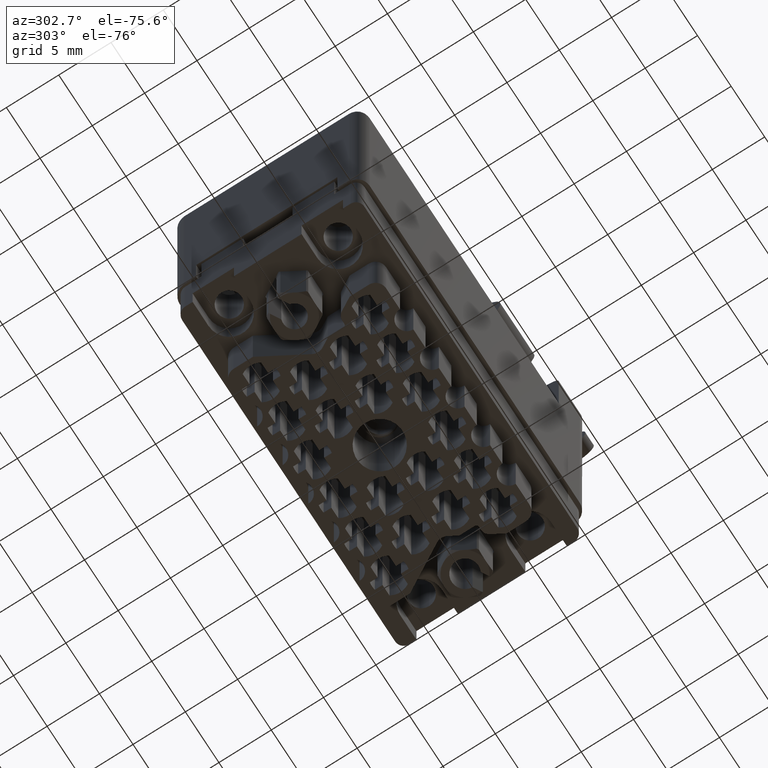
[diagram: clean part render]
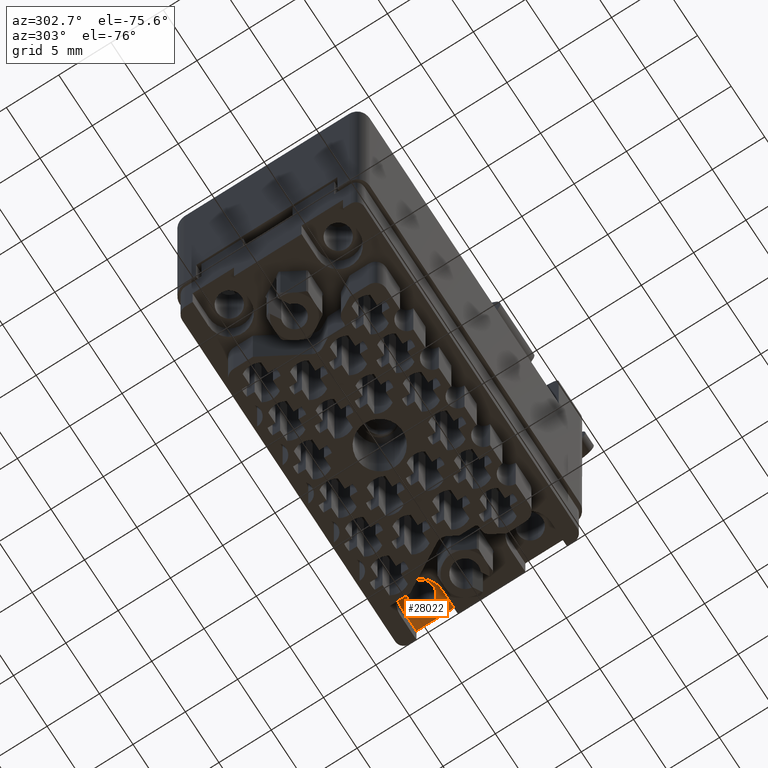
[diagram: same view with one face highlighted and labeled with its STEP entity id]
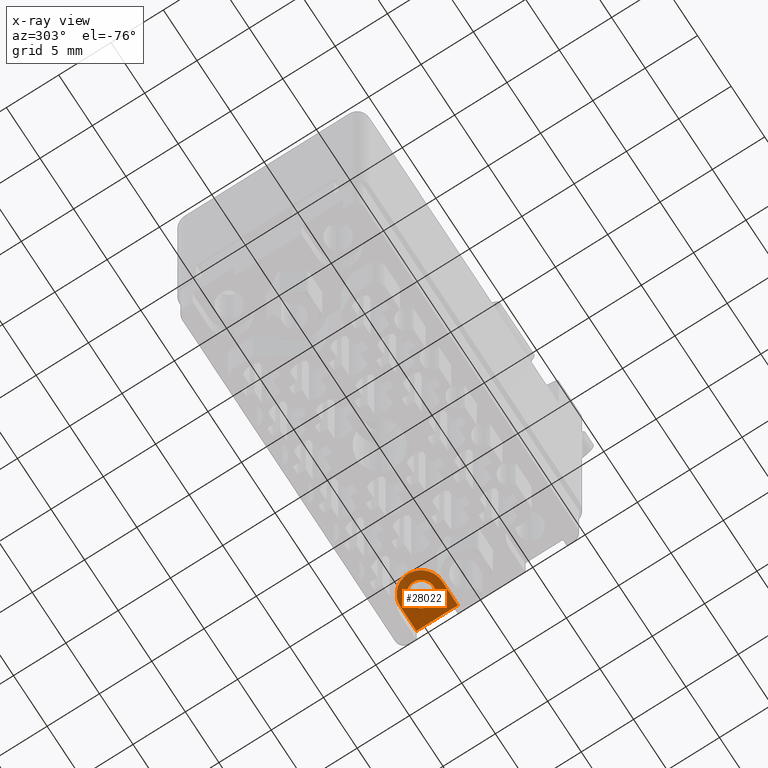
[diagram: x-ray of the same camera — body ghosted, the highlighted face saturated]
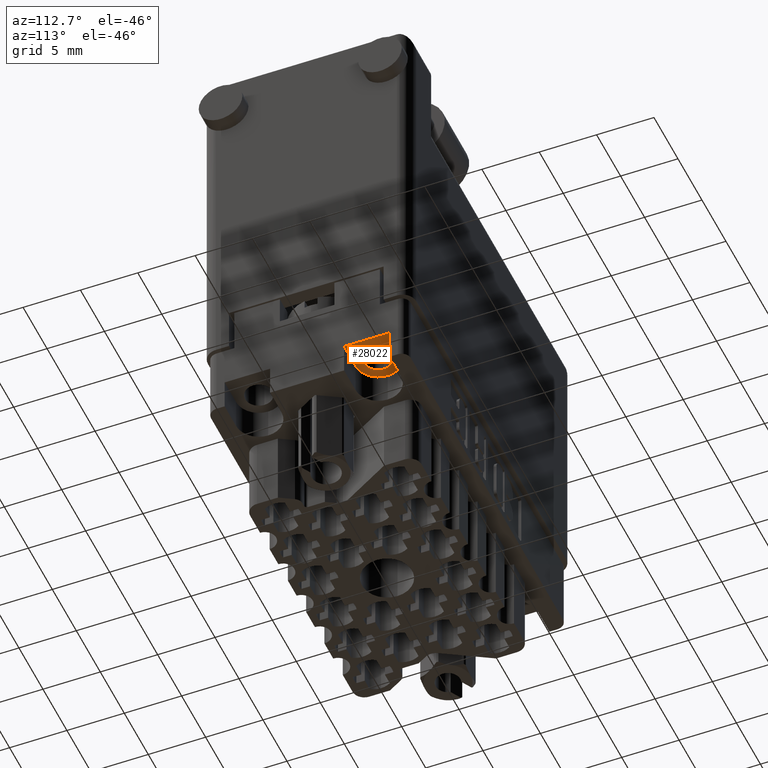
[diagram: same view with one face highlighted and labeled with its STEP entity id]
A machine part, auxiliary view. The second image highlights one B-rep face of the part: STEP entity #28022.
The next image is the same camera in x-ray: the body ghosted, the highlighted face saturated — about 20% of this face is hidden behind the body in this view.
A second angle (auxiliary view) of the same face is appended — the face is thin or edge-on in the first view.
In plain terms, the highlighted planar face has unit normal (0, 0, -1).
Its self-contained STEP definition (entity closure, byte-faithful):
#549 = ORIENTED_EDGE ( 'NONE', *, *, #32749, .F. ) ;
#1558 = CARTESIAN_POINT ( 'NONE',  ( 0.6090000000000001000, 0.2049999999999999900, -0.4200000000000001000 ) ) ;
#1779 = VERTEX_POINT ( 'NONE', #23985 ) ;
#2939 = VECTOR ( 'NONE', #35113, 39.37007874015748100 ) ;
#4803 = CARTESIAN_POINT ( 'NONE',  ( 0.6559999999999999200, 0.2829999999999999700, -0.4200000000000001000 ) ) ;
#5494 = AXIS2_PLACEMENT_3D ( 'NONE', #8997, #14672, #14197 ) ;
#6001 = DIRECTION ( 'NONE',  ( 0.0000000000000000000, 0.0000000000000000000, -1.000000000000000000 ) ) ;
#6036 = EDGE_CURVE ( 'NONE', #27730, #6904, #31824, .T. ) ;
#6171 = CARTESIAN_POINT ( 'NONE',  ( 0.4845000000000001000, 0.2049999999999999900, -0.4200000000000001000 ) ) ;
#6904 = VERTEX_POINT ( 'NONE', #4803 ) ;
#7164 = CARTESIAN_POINT ( 'NONE',  ( 0.5625000000000001100, 0.2830000000000000300, -0.4200000000000001000 ) ) ;
#7773 = AXIS2_PLACEMENT_3D ( 'NONE', #26409, #26524, #12929 ) ;
#8169 = EDGE_CURVE ( 'NONE', #14401, #33417, #23691, .T. ) ;
#8274 = CARTESIAN_POINT ( 'NONE',  ( 0.5625000000000001100, 0.2049999999999999900, -0.4200000000000001000 ) ) ;
#8518 = DIRECTION ( 'NONE',  ( 0.0000000000000000000, 0.0000000000000000000, -1.000000000000000000 ) ) ;
#8749 = ORIENTED_EDGE ( 'NONE', *, *, #6036, .F. ) ;
#8997 = CARTESIAN_POINT ( 'NONE',  ( 0.5625000000000001100, 0.2049999999999999900, -0.4200000000000001000 ) ) ;
#9261 = ORIENTED_EDGE ( 'NONE', *, *, #29272, .T. ) ;
#10663 = DIRECTION ( 'NONE',  ( -1.000000000000000000, 0.0000000000000000000, 0.0000000000000000000 ) ) ;
#10689 = LINE ( 'NONE', #28112, #17173 ) ;
#12866 = ORIENTED_EDGE ( 'NONE', *, *, #8169, .F. ) ;
#12929 = DIRECTION ( 'NONE',  ( -1.000000000000000000, 0.0000000000000000000, -0.0000000000000000000 ) ) ;
#13098 = CIRCLE ( 'NONE', #5494, 0.07799999999999995800 ) ;
#13242 = VERTEX_POINT ( 'NONE', #6171 ) ;
#13614 = ORIENTED_EDGE ( 'NONE', *, *, #34029, .T. ) ;
#14032 = FACE_BOUND ( 'NONE', #15351, .T. ) ;
#14197 = DIRECTION ( 'NONE',  ( -1.000000000000000000, 0.0000000000000000000, 0.0000000000000000000 ) ) ;
#14401 = VERTEX_POINT ( 'NONE', #25026 ) ;
#14672 = DIRECTION ( 'NONE',  ( 0.0000000000000000000, 0.0000000000000000000, -1.000000000000000000 ) ) ;
#15351 = EDGE_LOOP ( 'NONE', ( #12866, #549 ) ) ;
#15520 = ORIENTED_EDGE ( 'NONE', *, *, #23902, .F. ) ;
#15547 = CARTESIAN_POINT ( 'NONE',  ( 0.0000000000000000000, 0.1269999999999999700, -0.4200000000000001000 ) ) ;
#16706 = CARTESIAN_POINT ( 'NONE',  ( 0.6559999999999999200, 0.1269999999999999700, -0.4200000000000001000 ) ) ;
#17173 = VECTOR ( 'NONE', #19865, 39.37007874015748100 ) ;
#17252 = DIRECTION ( 'NONE',  ( -1.000000000000000000, 0.0000000000000000000, 0.0000000000000000000 ) ) ;
#19865 = DIRECTION ( 'NONE',  ( -1.000000000000000000, 0.0000000000000000000, 0.0000000000000000000 ) ) ;
#22286 = FACE_OUTER_BOUND ( 'NONE', #29873, .T. ) ;
#23691 = CIRCLE ( 'NONE', #29372, 0.04650000000000003400 ) ;
#23734 = PLANE ( 'NONE',  #7773 ) ;
#23902 = EDGE_CURVE ( 'NONE', #6904, #35321, #10689, .T. ) ;
#23953 = AXIS2_PLACEMENT_3D ( 'NONE', #25750, #6001, #17252 ) ;
#23985 = CARTESIAN_POINT ( 'NONE',  ( 0.5625000000000001100, 0.1269999999999999700, -0.4200000000000001000 ) ) ;
#25026 = CARTESIAN_POINT ( 'NONE',  ( 0.5160000000000000100, 0.2049999999999999900, -0.4200000000000001000 ) ) ;
#25750 = CARTESIAN_POINT ( 'NONE',  ( 0.5625000000000001100, 0.2049999999999999900, -0.4200000000000001000 ) ) ;
#26376 = LINE ( 'NONE', #15547, #2939 ) ;
#26409 = CARTESIAN_POINT ( 'NONE',  ( 0.0000000000000000000, 0.0000000000000000000, -0.4200000000000001000 ) ) ;
#26524 = DIRECTION ( 'NONE',  ( 0.0000000000000000000, 0.0000000000000000000, -1.000000000000000000 ) ) ;
#27034 = DIRECTION ( 'NONE',  ( 0.0000000000000000000, 0.0000000000000000000, -1.000000000000000000 ) ) ;
#27730 = VERTEX_POINT ( 'NONE', #16706 ) ;
#28022 = ADVANCED_FACE ( 'NONE', ( #14032, #22286 ), #23734, .T. ) ;
#28112 = CARTESIAN_POINT ( 'NONE',  ( 0.0000000000000000000, 0.2830000000000000300, -0.4200000000000001000 ) ) ;
#29055 = CIRCLE ( 'NONE', #33743, 0.07799999999999995800 ) ;
#29272 = EDGE_CURVE ( 'NONE', #13242, #35321, #13098, .T. ) ;
#29372 = AXIS2_PLACEMENT_3D ( 'NONE', #8274, #8518, #33268 ) ;
#29637 = DIRECTION ( 'NONE',  ( -0.0000000000000000000, 1.000000000000000000, 0.0000000000000000000 ) ) ;
#29873 = EDGE_LOOP ( 'NONE', ( #33753, #13614, #9261, #15520, #8749 ) ) ;
#30068 = VECTOR ( 'NONE', #29637, 39.37007874015748100 ) ;
#31824 = LINE ( 'NONE', #34875, #30068 ) ;
#32512 = CARTESIAN_POINT ( 'NONE',  ( 0.5625000000000001100, 0.2049999999999999900, -0.4200000000000001000 ) ) ;
#32749 = EDGE_CURVE ( 'NONE', #33417, #14401, #34209, .T. ) ;
#33110 = EDGE_CURVE ( 'NONE', #27730, #1779, #26376, .T. ) ;
#33268 = DIRECTION ( 'NONE',  ( -1.000000000000000000, 0.0000000000000000000, 0.0000000000000000000 ) ) ;
#33417 = VERTEX_POINT ( 'NONE', #1558 ) ;
#33743 = AXIS2_PLACEMENT_3D ( 'NONE', #32512, #27034, #10663 ) ;
#33753 = ORIENTED_EDGE ( 'NONE', *, *, #33110, .T. ) ;
#34029 = EDGE_CURVE ( 'NONE', #1779, #13242, #29055, .T. ) ;
#34209 = CIRCLE ( 'NONE', #23953, 0.04650000000000003400 ) ;
#34875 = CARTESIAN_POINT ( 'NONE',  ( 0.6559999999999999200, -0.3430000000000001400, -0.4200000000000001000 ) ) ;
#35113 = DIRECTION ( 'NONE',  ( -1.000000000000000000, 0.0000000000000000000, 0.0000000000000000000 ) ) ;
#35321 = VERTEX_POINT ( 'NONE', #7164 ) ;